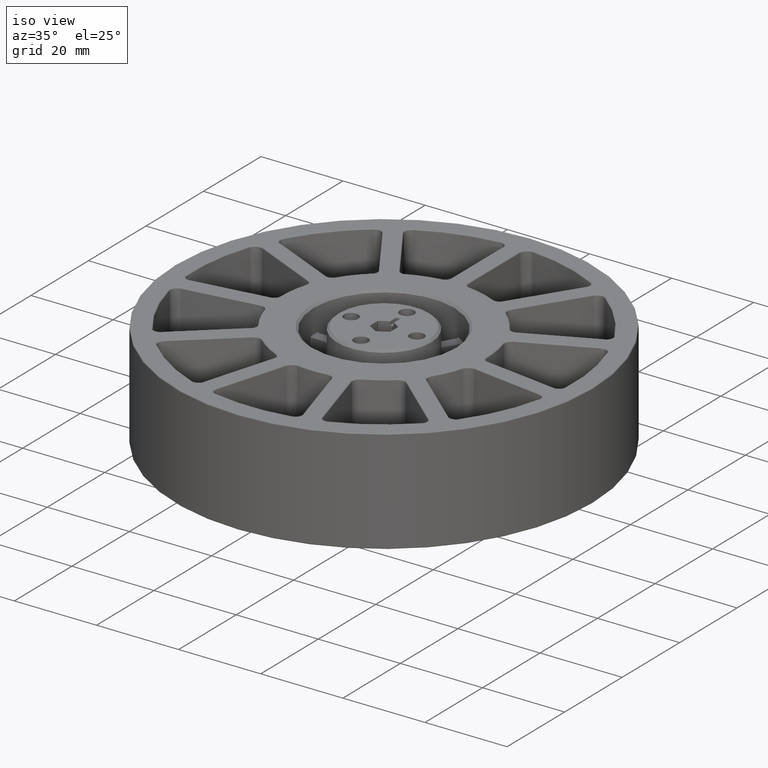
[diagram: clean part render]
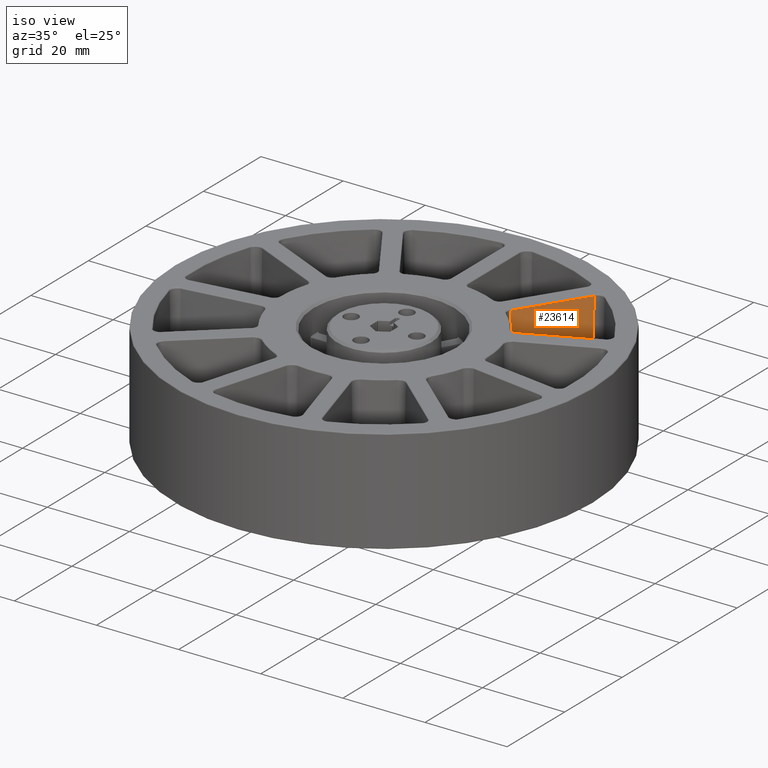
[diagram: same view with one face highlighted and labeled with its STEP entity id]
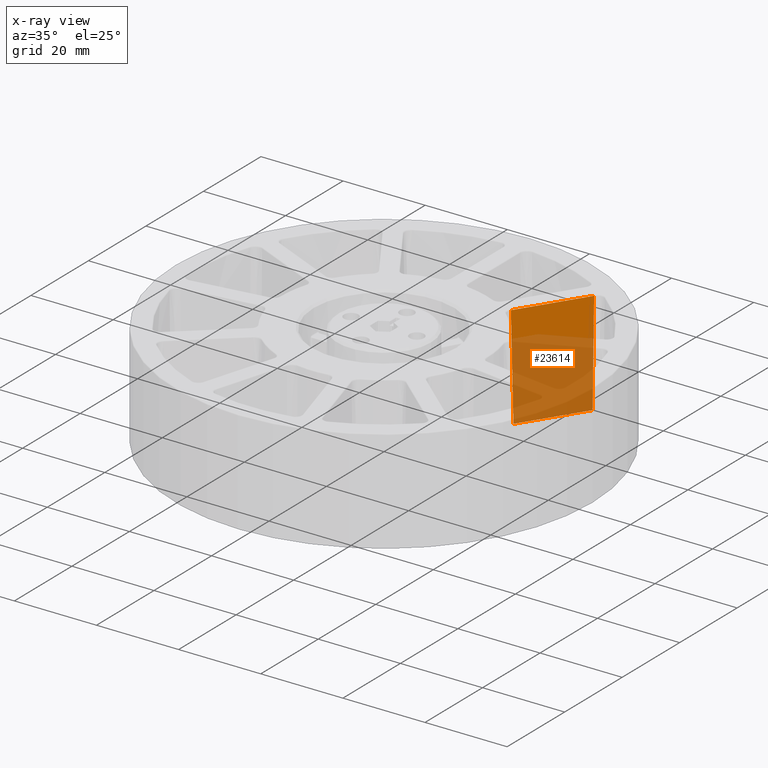
[diagram: x-ray of the same camera — body ghosted, the highlighted face saturated]
A machine part, iso view. The second image highlights one B-rep face of the part: STEP entity #23614.
The next image is the same camera in x-ray: the body ghosted, the highlighted face saturated — about 70% of this face is hidden behind the body in this view.
In plain terms, the highlighted planar face has unit normal (0.8411, -0.5406, 0.0175).
Its self-contained STEP definition (entity closure, byte-faithful):
#1838 = CARTESIAN_POINT ( 'NONE',  ( 13.72815966344257532, 16.66330496195242361, -12.69999999999999929 ) ) ;
#2088 = CARTESIAN_POINT ( 'NONE',  ( 25.89106235794379884, 35.59749471228009554, -12.44156708876493056 ) ) ;
#2853 = B_SPLINE_CURVE_WITH_KNOTS ( 'NONE', 3,
 ( #2088, #11125, #19752, #28187 ),
 .UNSPECIFIED., .F., .F.,
 ( 4, 4 ),
 ( 0.0002585197523565945822, 0.02515883484189918723 ),
 .UNSPECIFIED. ) ;
#6135 = PLANE ( 'NONE',  #23291 ) ;
#6336 = EDGE_CURVE ( 'NONE', #13814, #24758, #12695, .T. ) ;
#7489 = VECTOR ( 'NONE', #12477, 1000.000000000000114 ) ;
#8202 = CARTESIAN_POINT ( 'NONE',  ( 16.27589016035836167, 21.17176859303762271, 4.153113005094430044 ) ) ;
#9092 = LINE ( 'NONE', #17829, #11394 ) ;
#9658 = CARTESIAN_POINT ( 'NONE',  ( 25.89106235794379884, 35.59749471228009554, -12.44156708876493056 ) ) ;
#10043 = EDGE_LOOP ( 'NONE', ( #11395, #11401, #11470, #11500 ) ) ;
#10488 = EDGE_CURVE ( 'NONE', #24758, #14990, #2853, .T. ) ;
#10878 = DIRECTION ( 'NONE',  ( 0.8411254058434353142, -0.5405584752404352100, 0.01745240643728354635 ) ) ;
#11125 = CARTESIAN_POINT ( 'NONE',  ( 25.85521441771881967, 35.80960041558250140, -4.144250076482665968 ) ) ;
#11394 = VECTOR ( 'NONE', #26266, 1000.000000000000114 ) ;
#11395 = ORIENTED_EDGE ( 'NONE', *, *, #27901, .T. ) ;
#11401 = ORIENTED_EDGE ( 'NONE', *, *, #6336, .T. ) ;
#11470 = ORIENTED_EDGE ( 'NONE', *, *, #10488, .T. ) ;
#11500 = ORIENTED_EDGE ( 'NONE', *, *, #15930, .T. ) ;
#12477 = DIRECTION ( 'NONE',  ( 0.5406408174555862312, 0.8412535328311884220, -1.734459188727531592E-18 ) ) ;
#12616 = CARTESIAN_POINT ( 'NONE',  ( 25.88838388333899942, 35.59332692444178292, -12.44156708876493056 ) ) ;
#12695 = LINE ( 'NONE', #12616, #7489 ) ;
#13814 = VERTEX_POINT ( 'NONE', #16429 ) ;
#14990 = VERTEX_POINT ( 'NONE', #15082 ) ;
#15082 = CARTESIAN_POINT ( 'NONE',  ( 25.78213274746739003, 36.23165707198418772, 12.45043291123507068 ) ) ;
#15930 = EDGE_CURVE ( 'NONE', #14990, #25508, #9092, .T. ) ;
#16429 = CARTESIAN_POINT ( 'NONE',  ( 16.65443447573716895, 21.22502118369431301, -12.44156708876493056 ) ) ;
#16986 = CARTESIAN_POINT ( 'NONE',  ( 16.46539534449132347, 21.19875769228702111, -4.144220608770244674 ) ) ;
#17829 = CARTESIAN_POINT ( 'NONE',  ( 16.08384878902692705, 21.14083266690989049, 12.45043291123506890 ) ) ;
#18407 = B_SPLINE_CURVE_WITH_KNOTS ( 'NONE', 3,
 ( #27504, #8202, #16986, #25460 ),
 .UNSPECIFIED., .F., .F.,
 ( 4, 4 ),
 ( 0.0002496339036662408766, 0.02514825751138455995 ),
 .UNSPECIFIED. ) ;
#19386 = CARTESIAN_POINT ( 'NONE',  ( 16.08589882521366832, 21.14402258548216196, 12.45043291123507068 ) ) ;
#19514 = DIRECTION ( 'NONE',  ( 0.5406408174555862312, 0.8412535328311884220, 0.0000000000000000000 ) ) ;
#19752 = CARTESIAN_POINT ( 'NONE',  ( 25.81889961341257944, 36.02098019955354857, 4.153083517634013511 ) ) ;
#23291 = AXIS2_PLACEMENT_3D ( 'NONE', #1838, #10878, #19514 ) ;
#23614 = ADVANCED_FACE ( 'NONE', ( #25624 ), #6135, .T. ) ;
#24758 = VERTEX_POINT ( 'NONE', #9658 ) ;
#25460 = CARTESIAN_POINT ( 'NONE',  ( 16.65443447573716895, 21.22502118369431301, -12.44156708876493056 ) ) ;
#25508 = VERTEX_POINT ( 'NONE', #19386 ) ;
#25624 = FACE_OUTER_BOUND ( 'NONE', #10043, .T. ) ;
#26266 = DIRECTION ( 'NONE',  ( -0.5406408174555862312, -0.8412535328311884220, 1.734459188727531592E-18 ) ) ;
#27504 = CARTESIAN_POINT ( 'NONE',  ( 16.08589882521366832, 21.14402258548216196, 12.45043291123507068 ) ) ;
#27901 = EDGE_CURVE ( 'NONE', #25508, #13814, #18407, .T. ) ;
#28187 = CARTESIAN_POINT ( 'NONE',  ( 25.78213274746739003, 36.23165707198418772, 12.45043291123507068 ) ) ;